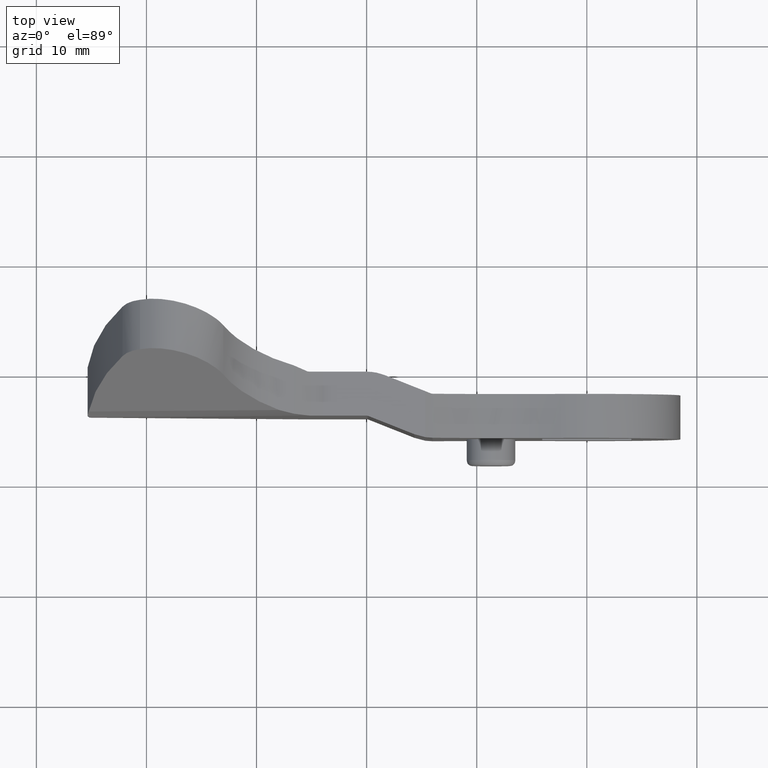
[diagram: clean part render]
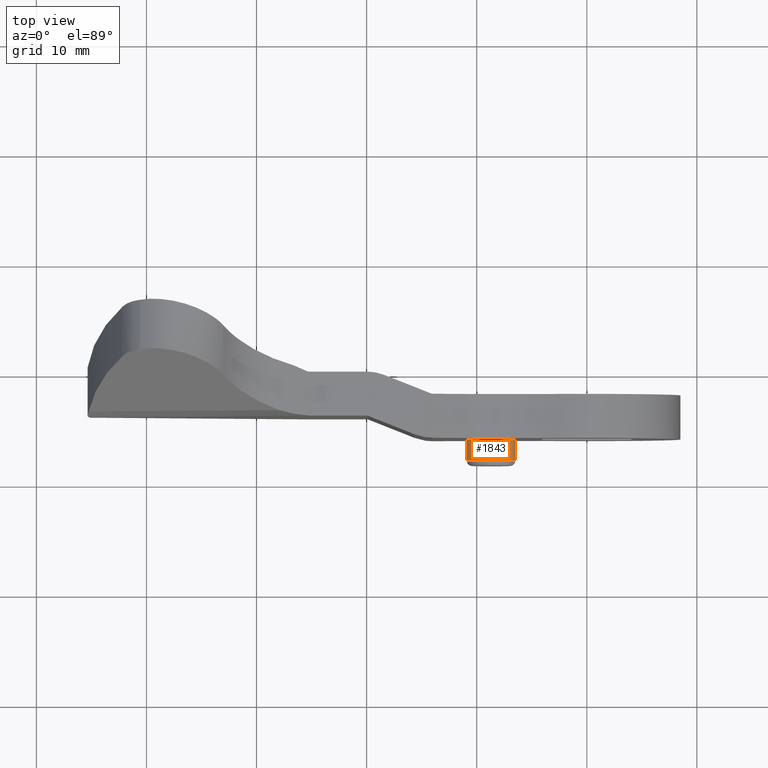
[diagram: same view with one face highlighted and labeled with its STEP entity id]
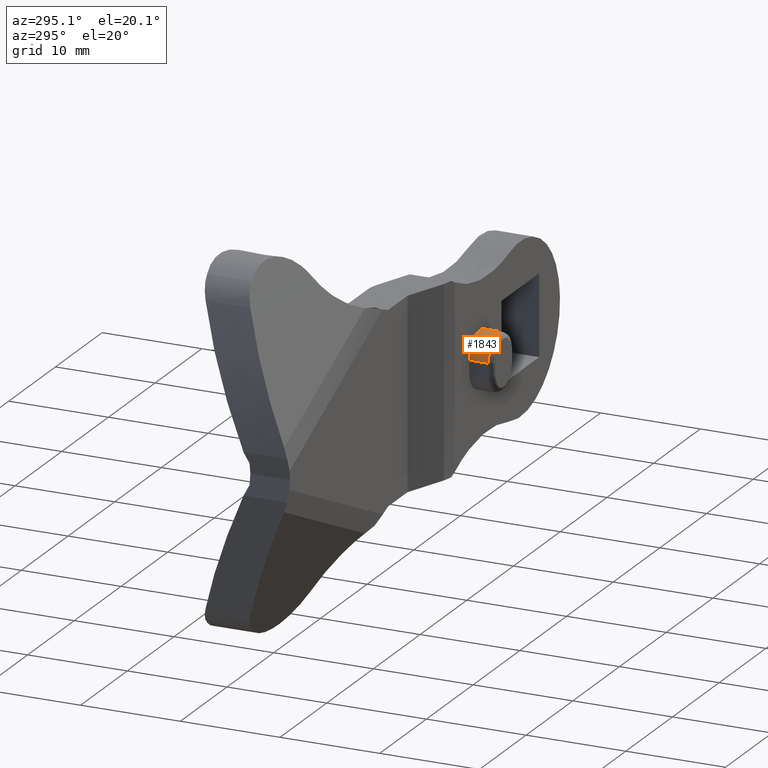
[diagram: same view with one face highlighted and labeled with its STEP entity id]
A machine part, top view. The second image highlights one B-rep face of the part: STEP entity #1843.
A second angle (auxiliary view) of the same face is appended — the face is thin or edge-on in the first view.
In plain terms, the highlighted face is a freeform B-spline surface patch.
Its self-contained STEP definition (entity closure, byte-faithful):
#719=CARTESIAN_POINT('',(-6.500000308733410,-7.900000302151770,0.600000028176624));
#720=VERTEX_POINT('',#719);
#734=CARTESIAN_POINT('',(-10.900000517722200,-7.900000302151770,0.600000028135485));
#735=VERTEX_POINT('',#734);
#736=CARTESIAN_POINT('',(-10.900000517722191,-7.900000302151770,0.600000028135485));
#737=CARTESIAN_POINT('',(-10.900000517931753,-7.900000302151771,1.870170680834705));
#738=CARTESIAN_POINT('',(-9.800000465591651,-7.900000302151770,2.505256007251667));
#739=CARTESIAN_POINT('',(-8.700000413251551,-7.900000302151771,3.140341333668629));
#740=CARTESIAN_POINT('',(-7.600000360899576,-7.900000302151770,2.505256007272237));
#741=CARTESIAN_POINT('',(-6.500000308547601,-7.900000302151771,1.870170680875845));
#742=CARTESIAN_POINT('',(-6.500000308733410,-7.900000302151770,0.600000028176625));
#750=(BOUNDED_CURVE()B_SPLINE_CURVE(2,(#736,#737,#738,#739,#740,#741,#742),.UNSPECIFIED.,.F.,.U.)B_SPLINE_CURVE_WITH_KNOTS((3,2,2,3),(0.0,0.333333333333333,0.666666666666667,1.0),.UNSPECIFIED.)CURVE()GEOMETRIC_REPRESENTATION_ITEM()RATIONAL_B_SPLINE_CURVE((1.0,0.866025403758499,1.0,0.866025403758499,1.0,0.866025403758499,1.0))REPRESENTATION_ITEM(''));
#751=EDGE_CURVE('',#735,#720,#750,.T.);
#1780=CARTESIAN_POINT('',(-6.500000308733489,-6.000000189989610,0.600000028176617));
#1781=VERTEX_POINT('',#1780);
#1782=CARTESIAN_POINT('',(-6.500000308733410,-7.900000302151770,0.600000028176624));
#1783=CARTESIAN_POINT('',(-6.500000308733489,-6.000000189989610,0.600000028176617));
#1784=QUASI_UNIFORM_CURVE('',1,(#1782,#1783),.UNSPECIFIED.,.F.,.U.);
#1785=EDGE_CURVE('',#720,#1781,#1784,.T.);
#1797=CARTESIAN_POINT('',(-6.500084077999021,-7.947500304955825,0.580801649168335));
#1798=CARTESIAN_POINT('',(-6.500084077999021,-5.951312687115434,0.580801649168335));
#1799=CARTESIAN_POINT('',(-6.480203574227027,-7.947500304955824,2.858881702100790));
#1800=CARTESIAN_POINT('',(-6.480203574227027,-5.951312687115435,2.858881702100790));
#1801=CARTESIAN_POINT('',(-8.757589701918736,-7.947500304955825,2.799246247911689));
#1802=CARTESIAN_POINT('',(-8.757589701918736,-5.951312687115434,2.799246247911689));
#1803=CARTESIAN_POINT('',(-11.034975829610444,-7.947500304955824,2.739610793722588));
#1804=CARTESIAN_POINT('',(-11.034975829610444,-5.951312687115435,2.739610793722588));
#1805=CARTESIAN_POINT('',(-10.895897074075039,-7.947500304955825,0.465693235463781));
#1806=CARTESIAN_POINT('',(-10.895897074075039,-5.951312687115434,0.465693235463781));
#1814=(BOUNDED_SURFACE()B_SPLINE_SURFACE(1,2,((#1797,#1799,#1801,#1803,#1805),(#1798,#1800,#1802,#1804,#1806)),.UNSPECIFIED.,.F.,.F.,.U.)B_SPLINE_SURFACE_WITH_KNOTS((2,2),(3,2,3),(0.0,1.0),(0.0,3.735378560065468,7.470757120130936),.UNSPECIFIED.)GEOMETRIC_REPRESENTATION_ITEM()RATIONAL_B_SPLINE_SURFACE(((1.0,0.694658370458997,1.0,0.694658370458997,1.0),(1.0,0.694658370458997,1.0,0.694658370458997,1.0)))REPRESENTATION_ITEM('')SURFACE());
#1815=CARTESIAN_POINT('',(-10.900000517722200,-6.000000189989590,0.600000028135485));
#1816=VERTEX_POINT('',#1815);
#1817=CARTESIAN_POINT('',(-10.900000517722200,-7.900000302151770,0.600000028135485));
#1818=CARTESIAN_POINT('',(-10.900000517722200,-6.000000189989590,0.600000028135485));
#1819=QUASI_UNIFORM_CURVE('',1,(#1817,#1818),.UNSPECIFIED.,.F.,.U.);
#1820=EDGE_CURVE('',#735,#1816,#1819,.T.);
#1821=ORIENTED_EDGE('',*,*,#1820,.F.);
#1822=ORIENTED_EDGE('',*,*,#751,.T.);
#1823=ORIENTED_EDGE('',*,*,#1785,.T.);
#1824=CARTESIAN_POINT('',(-6.500000308733489,-6.000000189989610,0.600000028176617));
#1825=CARTESIAN_POINT('',(-6.500000308547596,-6.000000189989590,1.870170680875838));
#1826=CARTESIAN_POINT('',(-7.600000360899571,-6.000000189989590,2.505256007272234));
#1827=CARTESIAN_POINT('',(-8.700000413251548,-6.000000189989590,3.140341333668629));
#1828=CARTESIAN_POINT('',(-9.800000465591650,-6.000000189989590,2.505256007251668));
#1829=CARTESIAN_POINT('',(-10.900000517931755,-6.000000189989590,1.870170680834708));
#1830=CARTESIAN_POINT('',(-10.900000517722191,-6.000000189989590,0.600000028135486));
#1838=(BOUNDED_CURVE()B_SPLINE_CURVE(2,(#1824,#1825,#1826,#1827,#1828,#1829,#1830),.UNSPECIFIED.,.F.,.U.)B_SPLINE_CURVE_WITH_KNOTS((3,2,2,3),(0.0,0.333333333333333,0.666666666666667,1.0),.UNSPECIFIED.)CURVE()GEOMETRIC_REPRESENTATION_ITEM()RATIONAL_B_SPLINE_CURVE((1.0,0.866025403758499,1.0,0.866025403758499,1.0,0.866025403758499,1.0))REPRESENTATION_ITEM(''));
#1839=EDGE_CURVE('',#1781,#1816,#1838,.T.);
#1840=ORIENTED_EDGE('',*,*,#1839,.T.);
#1841=EDGE_LOOP('',(#1821,#1822,#1823,#1840));
#1842=FACE_OUTER_BOUND('',#1841,.T.);
#1843=ADVANCED_FACE('',(#1842),#1814,.T.);